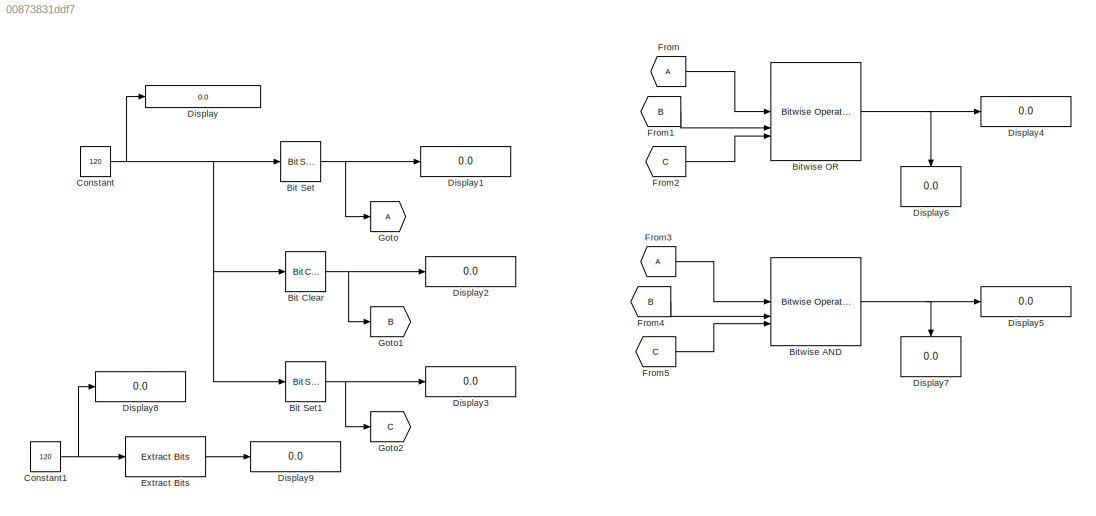
MODEL slx_00873831ddf7
KIND model
CONFIG AbsTol = auto
CONFIG EnableMultiTasking = off
CONFIG FixedStep = auto
CONFIG MaxStep = auto
CONFIG MinStep = auto
CONFIG RelTol = 1e-3
CONFIG SampleTimeConstraint = Unconstrained
CONFIG SolverName = VariableStepAuto
CONFIG StartTime = 0.0
CONFIG StopTime = 10.0
BLOCK [Reference] Bit Clear  REF=simulink/Logic and Bit
Operations/Bit Clear
  SourceBlock = simulink/Logic and Bit\nOperations/Bit Clear
  SourceType = Bit Clear
BLOCK [Reference] Bit Set  REF=simulink/Logic and Bit
Operations/Bit Set
  SourceBlock = simulink/Logic and Bit\nOperations/Bit Set
  SourceType = Bit Set
BLOCK [Reference] Bit Set1  REF=simulink/Logic and Bit
Operations/Bit Set
  SourceBlock = simulink/Logic and Bit\nOperations/Bit Set
  SourceType = Bit Set
BLOCK [Reference] Bitwise AND  REF=simulink/Logic and Bit
Operations/Bitwise
Operator
  LibrarySourceBlock = simulink/Quick Insert/Logic and Bit\nOperations/Bitwise AND
  SourceBlock = simulink/Logic and Bit\nOperations/Bitwise\nOperator
  SourceType = Bitwise Operator
BLOCK [Reference] Bitwise OR  REF=simulink/Logic and Bit
Operations/Bitwise
Operator
  LibrarySourceBlock = simulink/Quick Insert/Logic and Bit\nOperations/Bitwise OR
  SourceBlock = simulink/Logic and Bit\nOperations/Bitwise\nOperator
  SourceType = Bitwise Operator
BLOCK [Constant] Constant
  OutDataTypeStr = int8
  Value = 120
BLOCK [Constant] Constant1
  OutDataTypeStr = int8
  Value = 120
BLOCK [Display] Display
  Decimation = 1
  Format = binary (Stored Integer)
BLOCK [Display] Display1
  Decimation = 1
  Format = binary (Stored Integer)
BLOCK [Display] Display2
  Decimation = 1
  Format = binary (Stored Integer)
BLOCK [Display] Display3
  Decimation = 1
  Format = binary (Stored Integer)
BLOCK [Display] Display4
  Decimation = 1
  Format = binary (Stored Integer)
BLOCK [Display] Display5
  Decimation = 1
  Format = binary (Stored Integer)
BLOCK [Display] Display6
  Decimation = 1
  Format = decimal (Stored Integer)
  NameLocation = left
BLOCK [Display] Display7
  Decimation = 1
  Format = decimal (Stored Integer)
  NameLocation = left
BLOCK [Display] Display8
  Decimation = 1
  Format = binary (Stored Integer)
BLOCK [Display] Display9
  Decimation = 1
  Format = binary (Stored Integer)
BLOCK [Reference] Extract Bits  REF=simulink/Logic and Bit
Operations/Extract Bits
  SourceBlock = simulink/Logic and Bit\nOperations/Extract Bits
  SourceType = Extract Bits
BLOCK [From] From
BLOCK [From] From1
  GotoTag = B
BLOCK [From] From2
  GotoTag = C
BLOCK [From] From3
BLOCK [From] From4
  GotoTag = B
BLOCK [From] From5
  GotoTag = C
BLOCK [Goto] Goto
BLOCK [Goto] Goto1
  GotoTag = B
BLOCK [Goto] Goto2
  GotoTag = C
NET Bit Clear:1 -> Display2:1, Goto1:1
NET Bit Set1:1 -> Display3:1, Goto2:1
NET Bit Set:1 -> Display1:1, Goto:1
NET Bitwise AND:1 -> Display5:1, Display7:1
NET Bitwise OR:1 -> Display4:1, Display6:1
NET Constant1:1 -> Display8:1, Extract Bits:1
NET Constant:1 -> Bit Clear:1, Bit Set1:1, Bit Set:1, Display:1
LINE Extract Bits:1 -> Display9:1
LINE From1:1 -> Bitwise OR:2
LINE From2:1 -> Bitwise OR:3
LINE From3:1 -> Bitwise AND:1
LINE From4:1 -> Bitwise AND:2
LINE From5:1 -> Bitwise AND:3
LINE From:1 -> Bitwise OR:1
note: NET lines group one-source signal fan-out (src -> all destinations, sorted); 1:1 wires keep LINE
